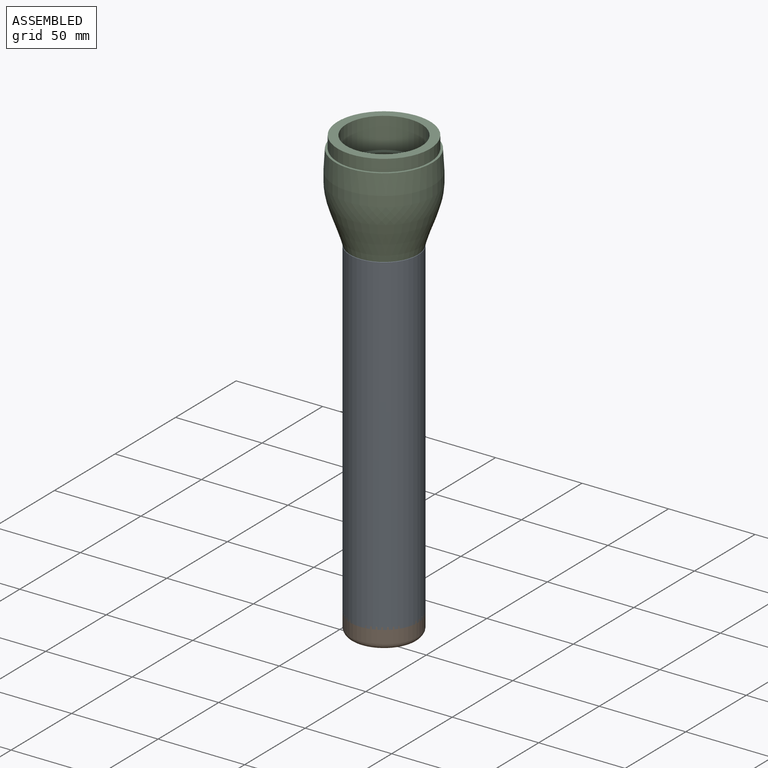
[diagram: assembled view]
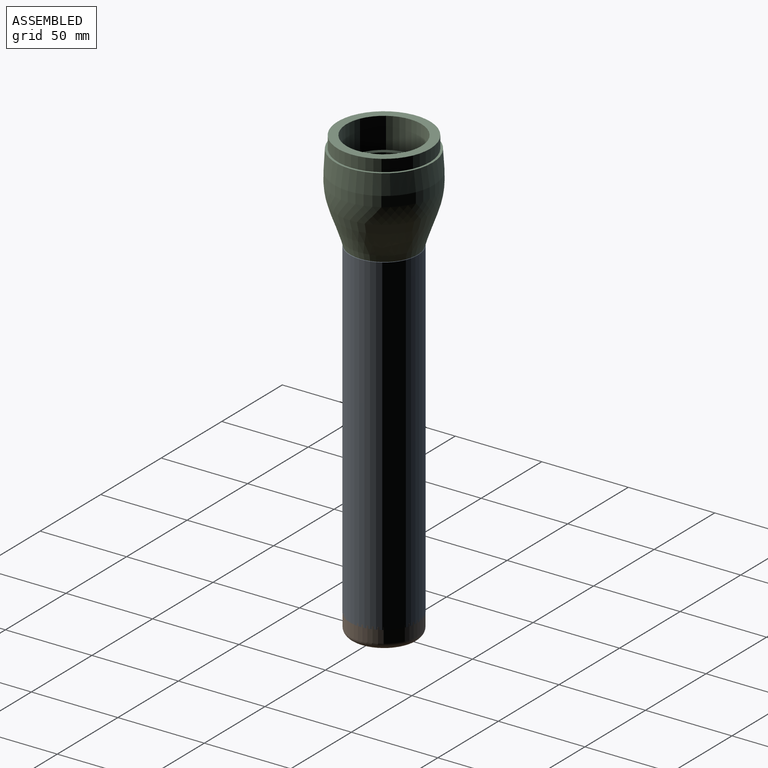
[diagram: assembled view, second angle]
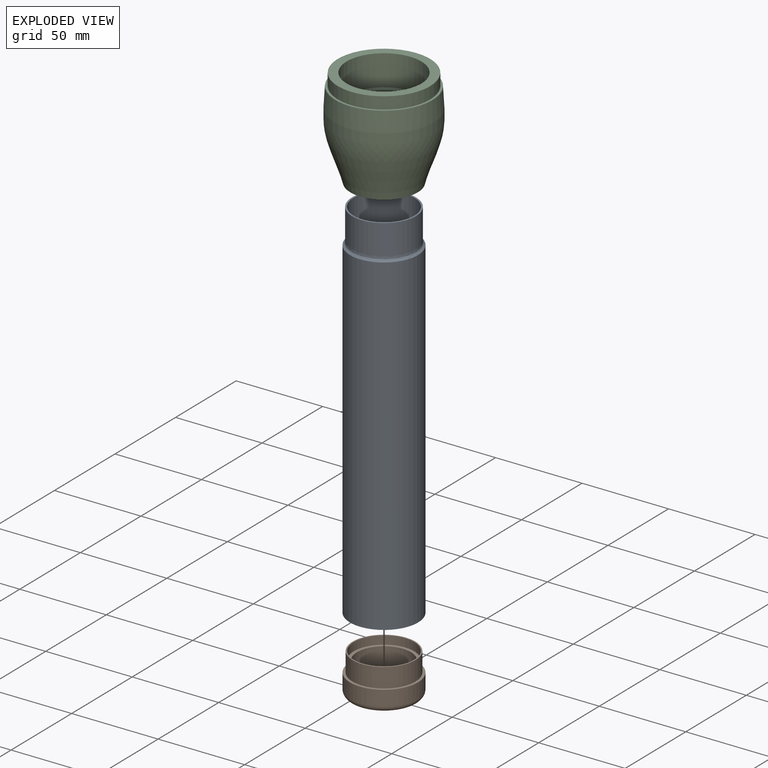
[diagram: exploded view]
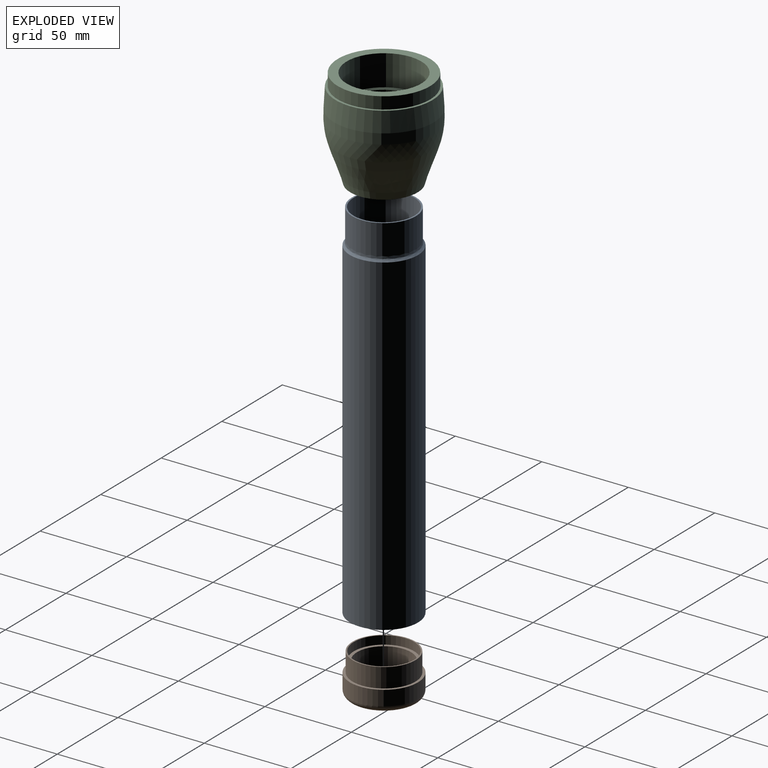
[diagram: exploded view, second angle]
ASSEMBLY  parts=3 mates=2
PART A: 6 faces, bbox 39.4x39.4x212 mm
  f0: plane 36.9x36.9mm, normal (0,0,1), area 98.2mm2, adj f4,f5
  f1: plane 39.4x39.4mm, normal (0,0,-1), area 248.3mm2, adj f2,f5
  f2: cylinder r=19.7mm len=192mm, axis (0,0,1), area 23765.5mm2, adj f1,f3
  f3: revolved ~39.4x39.4mm, area 388.8mm2, adj f2,f4
  f4: cylinder r=18.45mm len=36.9mm, axis (0,0,1), area 1988.7mm2, adj f0,f3
  f5: cylinder r=17.58mm len=212mm, axis (0,0,1), area 23417.2mm2, adj f0,f1
PART B: 10 faces, bbox 42.6x23.3x42.6 mm
  f0: cylinder r=19.68mm len=39.35mm, axis (0,1,0), area 1066.9mm2, adj f1,f9
  f1: plane 39.35x39.35mm, normal (0,-1,0), area 177.2mm2, adj f0,f3
  f2: plane 32.35x32.35mm, normal (0,1,0), area 821.9mm2, adj f9
  f3: cylinder r=18.18mm len=36.37mm, axis (0,1,0), area 1279.7mm2, adj f1,f4
  f4: plane 36.37x36.37mm, normal (0,-1,0), area 80.6mm2, adj f3,f5
  f5: cylinder r=17.46mm len=34.93mm, axis (0,-1,0), area 535.5mm2, adj f4,f6
  f6: plane 34.93x34.93mm, normal (0,-1,0), area 187.3mm2, adj f5,f7
  f7: cylinder r=15.66mm len=31.33mm, axis (0,-1,0), area 1521.7mm2, adj f6,f8
  f8: plane 31.33x31.33mm, normal (0,-1,0), area 770.9mm2, adj f7
  f9: torus R=16.17mm, axis (0,-1,0), area 635.7mm2, adj f0,f2
PART C: 8 faces, bbox 57.5x57.5x57.4 mm
  f0: plane 55.98x55.98mm, normal (0,0,1), area 222.5mm2, adj f1,f3
  f1: revolved ~57.5x57.5mm, area 8466.1mm2, adj f0,f2
  f2: plane 38.98x38.98mm, normal (0,0,-1), area 81.8mm2, adj f1,f7
  f3: cylinder r=26.7mm len=53.39mm, axis (0,0,-1), area 1165.7mm2, adj f0,f4
  f4: plane 53.39x53.39mm, normal (0,0,1), area 771.7mm2, adj f3,f5
  f5: cylinder r=21.61mm len=43.22mm, axis (0,0,1), area 2416.9mm2, adj f4,f6
  f6: plane 43.22x43.22mm, normal (0,0,1), area 355.6mm2, adj f5,f7
  f7: cylinder r=18.81mm len=39.62mm, axis (0,0,1), area 4682.6mm2, adj f2,f6
PLACE A rot(axis=(0,0,-1),147.5deg) t=(-35.33,-5.85,108.85)mm
PLACE B rot(axis=(-0.92,-0.27,0.27),94.5deg) t=(-35.33,-5.85,35.71)mm
PLACE C rot(axis=(0,0,1),32.5deg) t=(-35.33,-5.85,288.9)mm
MATE fastened C.f7 <-> A.f2  axis (0,0,-1) through (-35.33,-5.85,238.43)mm
MATE fastened B.f7 <-> A.f5  axis (0,0,1) through (-35.33,-5.85,46.43)mm
